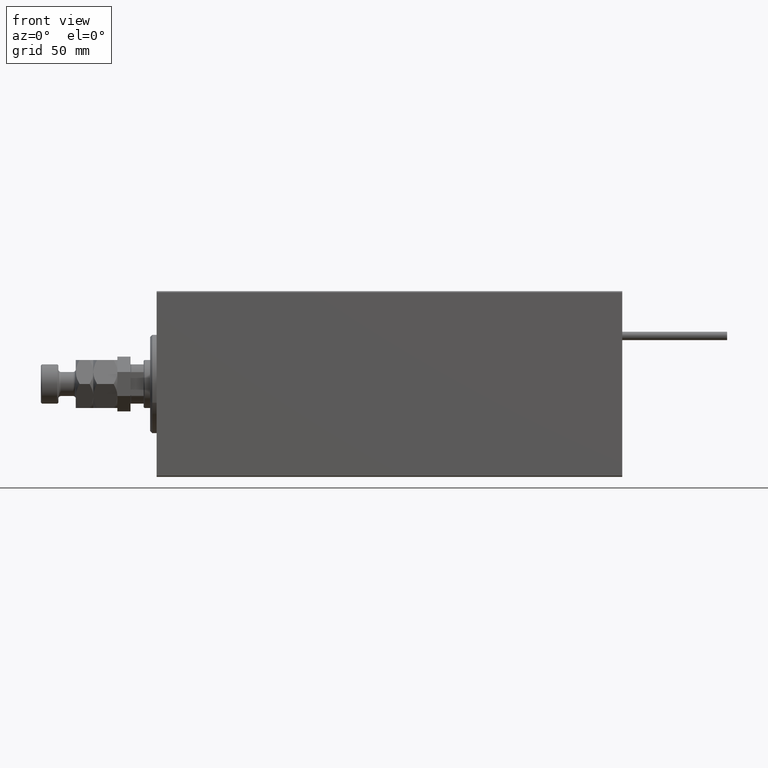
[diagram: clean part render]
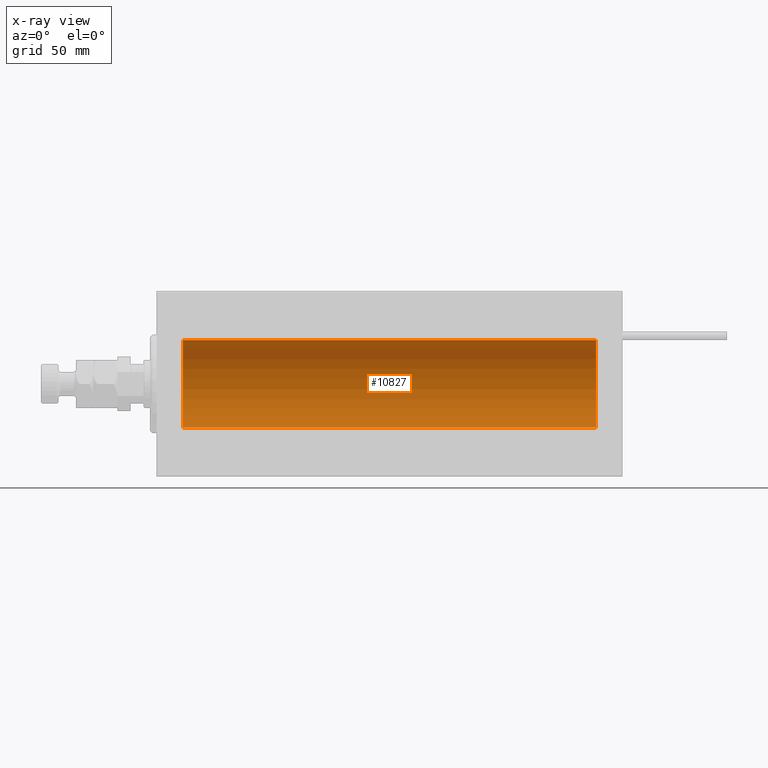
[diagram: x-ray — body ghosted, one internal face saturated and labeled with its STEP entity id]
A machine part, front view, then the same camera in x-ray: the body is ghosted and one INTERNAL B-rep face — a face not visible from any outside direction — is saturated and labeled: STEP entity #10827.
In plain terms, the highlighted cylindrical surface (partial cylindrical patch) has radius 20 mm, axis along (-1, -0, -0).
Its self-contained STEP definition (entity closure, byte-faithful):
#125 = EDGE_CURVE ( 'NONE', #17603, #31851, #28707, .T. ) ;
#2131 = AXIS2_PLACEMENT_3D ( 'NONE', #7594, #5456, #29503 ) ;
#2826 = VECTOR ( 'NONE', #33926, 1000.000000000000000 ) ;
#3638 = DIRECTION ( 'NONE',  ( -1.000000000000000000, 0.000000000000000000, 0.000000000000000000 ) ) ;
#5345 = EDGE_CURVE ( 'NONE', #17603, #19280, #5448, .T. ) ;
#5448 = CIRCLE ( 'NONE', #2131, 20.00000000000000000 ) ;
#5456 = DIRECTION ( 'NONE',  ( -1.000000000000000000, 0.000000000000000000, 0.000000000000000000 ) ) ;
#5918 = DIRECTION ( 'NONE',  ( -1.000000000000000000, -0.000000000000000000, -0.000000000000000000 ) ) ;
#7180 = CIRCLE ( 'NONE', #35527, 20.00000000000000000 ) ;
#7594 = CARTESIAN_POINT ( 'NONE',  ( 201.0000000000000000, 0.000000000000000000, 0.000000000000000000 ) ) ;
#10827 = ADVANCED_FACE ( 'NONE', ( #45398 ), #41462, .F. ) ;
#11299 = VERTEX_POINT ( 'NONE', #12092 ) ;
#12092 = CARTESIAN_POINT ( 'NONE',  ( 12.00000000000001066, 2.449293598294706513E-15, -20.00000000000000000 ) ) ;
#12293 = CARTESIAN_POINT ( 'NONE',  ( 201.0000000000000000, 2.449293598294706513E-15, -20.00000000000000000 ) ) ;
#17603 = VERTEX_POINT ( 'NONE', #45294 ) ;
#17713 = LINE ( 'NONE', #42281, #2826 ) ;
#18508 = ORIENTED_EDGE ( 'NONE', *, *, #5345, .F. ) ;
#19280 = VERTEX_POINT ( 'NONE', #12293 ) ;
#19330 = CARTESIAN_POINT ( 'NONE',  ( 12.00000000000001066, 0.000000000000000000, 0.000000000000000000 ) ) ;
#20216 = EDGE_LOOP ( 'NONE', ( #48725, #18508, #37263, #48995 ) ) ;
#21864 = DIRECTION ( 'NONE',  ( 0.000000000000000000, 0.000000000000000000, 1.000000000000000000 ) ) ;
#25299 = DIRECTION ( 'NONE',  ( -1.000000000000000000, -0.000000000000000000, -0.000000000000000000 ) ) ;
#27107 = VECTOR ( 'NONE', #25299, 1000.000000000000000 ) ;
#28707 = LINE ( 'NONE', #44656, #27107 ) ;
#29503 = DIRECTION ( 'NONE',  ( 0.000000000000000000, 0.000000000000000000, 1.000000000000000000 ) ) ;
#29858 = AXIS2_PLACEMENT_3D ( 'NONE', #45662, #5918, #21864 ) ;
#31851 = VERTEX_POINT ( 'NONE', #40080 ) ;
#33926 = DIRECTION ( 'NONE',  ( -1.000000000000000000, -0.000000000000000000, -0.000000000000000000 ) ) ;
#35161 = EDGE_CURVE ( 'NONE', #19280, #11299, #17713, .T. ) ;
#35527 = AXIS2_PLACEMENT_3D ( 'NONE', #19330, #3638, #39443 ) ;
#37263 = ORIENTED_EDGE ( 'NONE', *, *, #125, .T. ) ;
#39443 = DIRECTION ( 'NONE',  ( 0.000000000000000000, 0.000000000000000000, 1.000000000000000000 ) ) ;
#40080 = CARTESIAN_POINT ( 'NONE',  ( 12.00000000000001066, 0.000000000000000000, 20.00000000000000000 ) ) ;
#41462 = CYLINDRICAL_SURFACE ( 'NONE', #29858, 20.00000000000000000 ) ;
#41855 = EDGE_CURVE ( 'NONE', #31851, #11299, #7180, .T. ) ;
#42281 = CARTESIAN_POINT ( 'NONE',  ( 201.0000000000000000, 2.449293598294706513E-15, -20.00000000000000000 ) ) ;
#44656 = CARTESIAN_POINT ( 'NONE',  ( 201.0000000000000000, 0.000000000000000000, 20.00000000000000000 ) ) ;
#45294 = CARTESIAN_POINT ( 'NONE',  ( 201.0000000000000000, 0.000000000000000000, 20.00000000000000000 ) ) ;
#45398 = FACE_OUTER_BOUND ( 'NONE', #20216, .T. ) ;
#45662 = CARTESIAN_POINT ( 'NONE',  ( 201.0000000000000000, 0.000000000000000000, 0.000000000000000000 ) ) ;
#48725 = ORIENTED_EDGE ( 'NONE', *, *, #35161, .F. ) ;
#48995 = ORIENTED_EDGE ( 'NONE', *, *, #41855, .T. ) ;